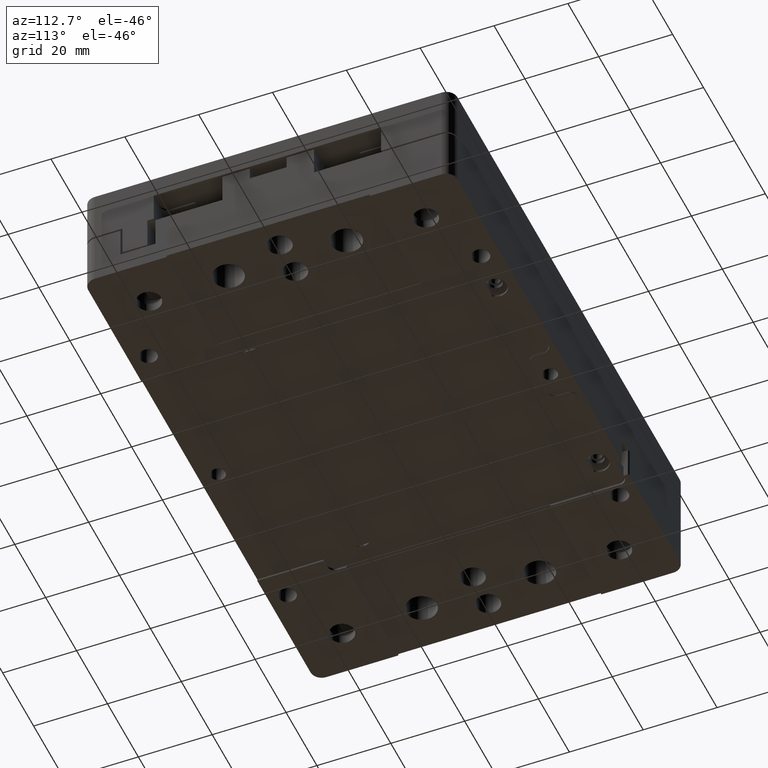
[diagram: clean part render]
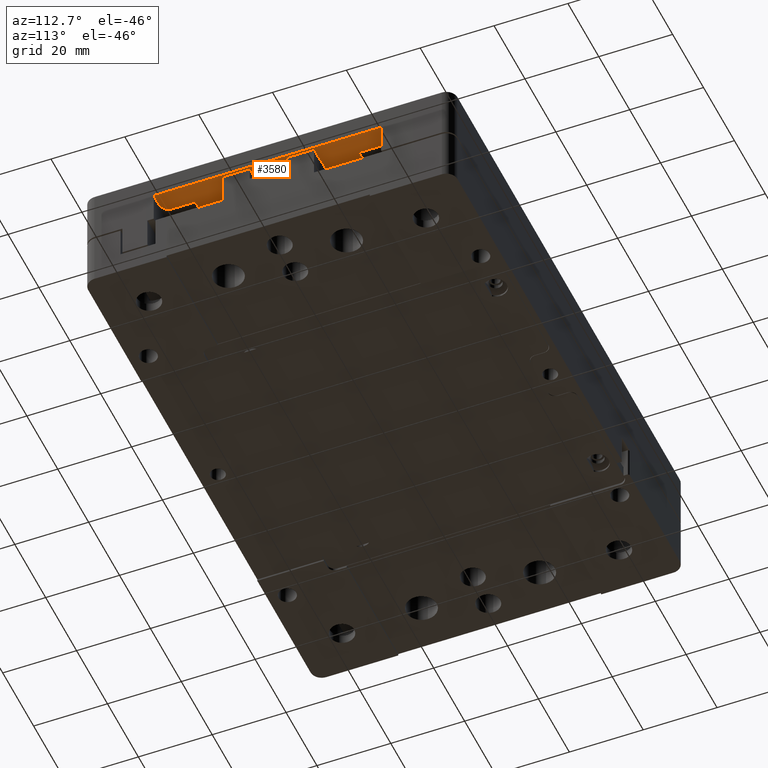
[diagram: same view with one face highlighted and labeled with its STEP entity id]
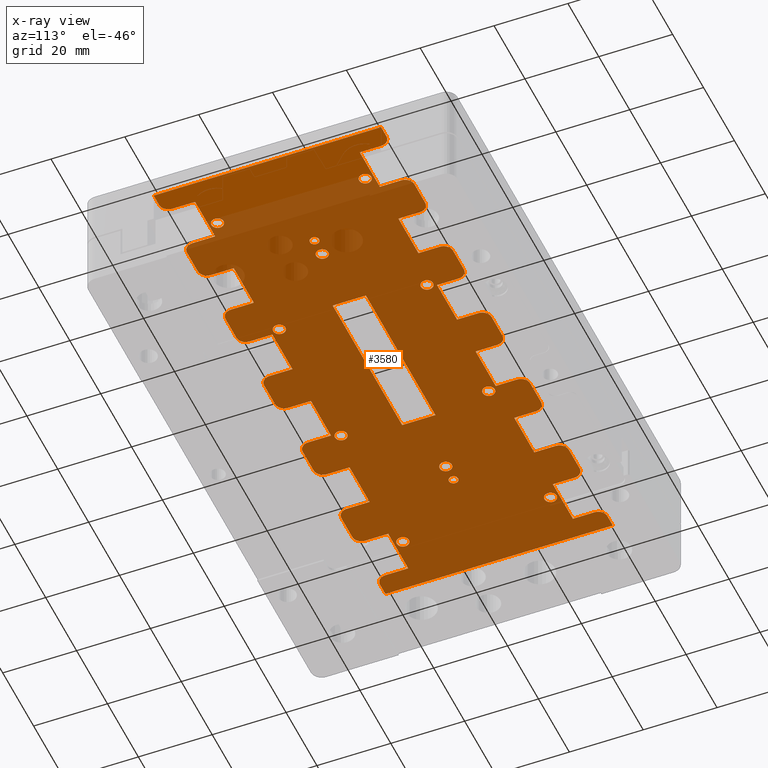
[diagram: x-ray of the same camera — body ghosted, the highlighted face saturated]
A machine part, auxiliary view. The second image highlights one B-rep face of the part: STEP entity #3580.
The next image is the same camera in x-ray: the body ghosted, the highlighted face saturated — about 90% of this face is hidden behind the body in this view.
In plain terms, the highlighted planar face has unit normal (0, 0, -1).
Its self-contained STEP definition (entity closure, byte-faithful):
#4 = CIRCLE ( 'NONE', #1800, 1.649999999999998579 ) ;
#36 = CARTESIAN_POINT ( 'NONE',  ( 19.00000000000000355, 28.10000000000000142, 9.000000000000001776 ) ) ;
#37 = CIRCLE ( 'NONE', #13809, 1.649999999999998579 ) ;
#64 = LINE ( 'NONE', #10393, #14369 ) ;
#77 = FACE_BOUND ( 'NONE', #7817, .T. ) ;
#112 = CARTESIAN_POINT ( 'NONE',  ( 56.00000000000000711, -50.00000000000000000, 9.000000000000001776 ) ) ;
#127 = ORIENTED_EDGE ( 'NONE', *, *, #6658, .T. ) ;
#143 = EDGE_LOOP ( 'NONE', ( #22128, #4400, #8133, #21600, #10445, #17548, #20938, #15487, #11674, #712, #16192, #13249, #10587, #2646, #16829, #1915, #896, #9781, #11763, #7789, #22479, #14325, #14165, #15863, #12252, #19091, #18935, #13603, #2059, #14999, #12551, #6706, #20848, #16492, #20326, #5723, #12242, #7753, #651, #13477, #17263, #2465, #7569, #2318, #5659, #16771, #6168, #4728, #14783, #7647, #16253, #11437, #6880, #11816, #13108, #15649, #3093, #5140, #18699, #18561, #5877, #6044, #16347, #12527, #3430, #1233, #18250, #18360, #11641, #16794, #18788, #20906, #127, #12077, #12814, #8712 ) ) ;
#173 = LINE ( 'NONE', #16068, #4595 ) ;
#182 = FACE_BOUND ( 'NONE', #21823, .T. ) ;
#184 = DIRECTION ( 'NONE',  ( -1.000000000000000000, 0.000000000000000000, 0.000000000000000000 ) ) ;
#188 = DIRECTION ( 'NONE',  ( -1.000000000000000000, 0.000000000000000000, -0.000000000000000000 ) ) ;
#189 = EDGE_LOOP ( 'NONE', ( #14485 ) ) ;
#246 = AXIS2_PLACEMENT_3D ( 'NONE', #19100, #22263, #8420 ) ;
#286 = LINE ( 'NONE', #21075, #3727 ) ;
#298 = CARTESIAN_POINT ( 'NONE',  ( -75.00000000000000000, -31.00000000000000000, 9.000000000000001776 ) ) ;
#329 = CARTESIAN_POINT ( 'NONE',  ( 69.00000000000000000, 28.10000000000000142, 9.000000000000001776 ) ) ;
#340 = CARTESIAN_POINT ( 'NONE',  ( -75.00000000000000000, 30.60000000000000142, 9.000000000000001776 ) ) ;
#359 = AXIS2_PLACEMENT_3D ( 'NONE', #17793, #10535, #19064 ) ;
#393 = VECTOR ( 'NONE', #4474, 1000.000000000000000 ) ;
#402 = DIRECTION ( 'NONE',  ( -1.000000000000000000, 0.000000000000000000, 0.000000000000000000 ) ) ;
#501 = LINE ( 'NONE', #12630, #1437 ) ;
#508 = DIRECTION ( 'NONE',  ( 0.000000000000000000, 1.000000000000000000, 0.000000000000000000 ) ) ;
#574 = CARTESIAN_POINT ( 'NONE',  ( -75.00000000000000000, 30.60000000000000142, 9.000000000000001776 ) ) ;
#651 = ORIENTED_EDGE ( 'NONE', *, *, #15262, .T. ) ;
#659 = CARTESIAN_POINT ( 'NONE',  ( -19.00000000000000355, -50.00000000000000000, 9.000000000000001776 ) ) ;
#712 = ORIENTED_EDGE ( 'NONE', *, *, #8408, .T. ) ;
#724 = VECTOR ( 'NONE', #6086, 1000.000000000000000 ) ;
#764 = VERTEX_POINT ( 'NONE', #14500 ) ;
#805 = LINE ( 'NONE', #2274, #21006 ) ;
#835 = VERTEX_POINT ( 'NONE', #3231 ) ;
#864 = ORIENTED_EDGE ( 'NONE', *, *, #2176, .T. ) ;
#896 = ORIENTED_EDGE ( 'NONE', *, *, #15430, .T. ) ;
#913 = VECTOR ( 'NONE', #5270, 1000.000000000000000 ) ;
#1016 = VECTOR ( 'NONE', #13476, 1000.000000000000000 ) ;
#1051 = CARTESIAN_POINT ( 'NONE',  ( -69.00000000000000000, 28.10000000000000142, 9.000000000000001776 ) ) ;
#1052 = VERTEX_POINT ( 'NONE', #15938 ) ;
#1071 = AXIS2_PLACEMENT_3D ( 'NONE', #13617, #1593, #1482 ) ;
#1080 = CARTESIAN_POINT ( 'NONE',  ( 56.00000000000000711, -22.30000000000000071, 9.000000000000001776 ) ) ;
#1114 = CARTESIAN_POINT ( 'NONE',  ( -6.000000000000002665, -28.50000000000000000, 9.000000000000001776 ) ) ;
#1146 = DIRECTION ( 'NONE',  ( -1.000000000000000000, 0.000000000000000000, -0.000000000000000000 ) ) ;
#1171 = CARTESIAN_POINT ( 'NONE',  ( 20.00000000000000000, 20.00000000000000000, 9.000000000000001776 ) ) ;
#1178 = DIRECTION ( 'NONE',  ( 1.000000000000000000, -0.000000000000000000, 0.000000000000000000 ) ) ;
#1233 = ORIENTED_EDGE ( 'NONE', *, *, #9702, .T. ) ;
#1257 = LINE ( 'NONE', #15218, #2968 ) ;
#1276 = DIRECTION ( 'NONE',  ( 0.000000000000000000, 1.000000000000000000, 0.000000000000000000 ) ) ;
#1281 = DIRECTION ( 'NONE',  ( 0.000000000000000000, 0.000000000000000000, 1.000000000000000000 ) ) ;
#1305 = CARTESIAN_POINT ( 'NONE',  ( 46.50000000000000000, 28.10000000000000497, 9.000000000000001776 ) ) ;
#1325 = CARTESIAN_POINT ( 'NONE',  ( -3.500000000000000444, 30.60000000000000142, 9.000000000000001776 ) ) ;
#1378 = DIRECTION ( 'NONE',  ( -1.000000000000000000, 0.000000000000000000, 0.000000000000000000 ) ) ;
#1388 = DIRECTION ( 'NONE',  ( 0.000000000000000000, 0.000000000000000000, -1.000000000000000000 ) ) ;
#1392 = DIRECTION ( 'NONE',  ( -1.000000000000000000, 0.000000000000000000, 0.000000000000000000 ) ) ;
#1437 = VECTOR ( 'NONE', #9131, 1000.000000000000000 ) ;
#1438 = CARTESIAN_POINT ( 'NONE',  ( -71.50000000000001421, -31.00000000000000000, 9.000000000000001776 ) ) ;
#1481 = VERTEX_POINT ( 'NONE', #14083 ) ;
#1482 = DIRECTION ( 'NONE',  ( -1.000000000000000000, 0.000000000000000000, 0.000000000000000000 ) ) ;
#1509 = CARTESIAN_POINT ( 'NONE',  ( 53.50000000000000000, 28.10000000000000497, 9.000000000000001776 ) ) ;
#1511 = CARTESIAN_POINT ( 'NONE',  ( 75.00000000000000000, -31.00000000000000000, 9.000000000000001776 ) ) ;
#1536 = AXIS2_PLACEMENT_3D ( 'NONE', #13804, #17773, #402 ) ;
#1546 = LINE ( 'NONE', #11762, #16047 ) ;
#1548 = LINE ( 'NONE', #20408, #15700 ) ;
#1593 = DIRECTION ( 'NONE',  ( 0.000000000000000000, 0.000000000000000000, -1.000000000000000000 ) ) ;
#1614 = EDGE_CURVE ( 'NONE', #7810, #13673, #805, .T. ) ;
#1620 = VERTEX_POINT ( 'NONE', #21579 ) ;
#1664 = FACE_BOUND ( 'NONE', #18363, .T. ) ;
#1693 = LINE ( 'NONE', #10438, #13734 ) ;
#1743 = EDGE_CURVE ( 'NONE', #14679, #17187, #15193, .T. ) ;
#1777 = FACE_BOUND ( 'NONE', #189, .T. ) ;
#1800 = AXIS2_PLACEMENT_3D ( 'NONE', #20300, #8256, #8371 ) ;
#1850 = CIRCLE ( 'NONE', #15266, 1.250000000000001110 ) ;
#1900 = VERTEX_POINT ( 'NONE', #17590 ) ;
#1915 = ORIENTED_EDGE ( 'NONE', *, *, #5746, .T. ) ;
#1993 = VERTEX_POINT ( 'NONE', #17664 ) ;
#2005 = VERTEX_POINT ( 'NONE', #17696 ) ;
#2026 = CIRCLE ( 'NONE', #14696, 2.500000000000000000 ) ;
#2048 = EDGE_CURVE ( 'NONE', #13673, #10899, #9286, .T. ) ;
#2059 = ORIENTED_EDGE ( 'NONE', *, *, #21694, .T. ) ;
#2068 = VERTEX_POINT ( 'NONE', #21892 ) ;
#2076 = VERTEX_POINT ( 'NONE', #1325 ) ;
#2096 = VECTOR ( 'NONE', #10597, 1000.000000000000000 ) ;
#2127 = AXIS2_PLACEMENT_3D ( 'NONE', #19334, #21138, #14308 ) ;
#2176 = EDGE_CURVE ( 'NONE', #7690, #7690, #4, .T. ) ;
#2196 = VECTOR ( 'NONE', #19530, 1000.000000000000000 ) ;
#2244 = CARTESIAN_POINT ( 'NONE',  ( -6.000000000000005329, -50.00000000000000000, 9.000000000000001776 ) ) ;
#2264 = DIRECTION ( 'NONE',  ( 0.000000000000000000, 0.000000000000000000, -1.000000000000000000 ) ) ;
#2274 = CARTESIAN_POINT ( 'NONE',  ( -75.00000000000000000, -22.30000000000000071, 9.000000000000001776 ) ) ;
#2286 = CARTESIAN_POINT ( 'NONE',  ( 31.00000000000000000, -28.50000000000000000, 9.000000000000001776 ) ) ;
#2318 = ORIENTED_EDGE ( 'NONE', *, *, #12676, .T. ) ;
#2433 = CARTESIAN_POINT ( 'NONE',  ( 41.64999999999999858, 0.000000000000000000, 9.000000000000001776 ) ) ;
#2442 = LINE ( 'NONE', #19724, #10822 ) ;
#2450 = EDGE_CURVE ( 'NONE', #13860, #15240, #16182, .T. ) ;
#2465 = ORIENTED_EDGE ( 'NONE', *, *, #14890, .T. ) ;
#2507 = CARTESIAN_POINT ( 'NONE',  ( -75.00000000000000000, -31.00000000000000000, 9.000000000000001776 ) ) ;
#2526 = CIRCLE ( 'NONE', #359, 2.500000000000002220 ) ;
#2540 = CARTESIAN_POINT ( 'NONE',  ( -75.00000000000000000, 30.60000000000000142, 9.000000000000001776 ) ) ;
#2557 = VERTEX_POINT ( 'NONE', #1080 ) ;
#2576 = VERTEX_POINT ( 'NONE', #20386 ) ;
#2646 = ORIENTED_EDGE ( 'NONE', *, *, #6338, .T. ) ;
#2654 = CARTESIAN_POINT ( 'NONE',  ( 6.000000000000002665, 28.10000000000000497, 9.000000000000001776 ) ) ;
#2656 = EDGE_CURVE ( 'NONE', #14274, #14274, #19238, .T. ) ;
#2736 = EDGE_LOOP ( 'NONE', ( #864 ) ) ;
#2771 = CARTESIAN_POINT ( 'NONE',  ( 46.50000000000000000, 30.60000000000000142, 9.000000000000001776 ) ) ;
#2859 = AXIS2_PLACEMENT_3D ( 'NONE', #7364, #15999, #3414 ) ;
#2960 = DIRECTION ( 'NONE',  ( 1.000000000000000000, 0.000000000000000000, 0.000000000000000000 ) ) ;
#2963 = EDGE_CURVE ( 'NONE', #3403, #12156, #13388, .T. ) ;
#2968 = VECTOR ( 'NONE', #12043, 1000.000000000000000 ) ;
#2980 = VERTEX_POINT ( 'NONE', #5005 ) ;
#2999 = LINE ( 'NONE', #4585, #4100 ) ;
#3004 = EDGE_CURVE ( 'NONE', #15338, #7125, #3071, .T. ) ;
#3007 = EDGE_CURVE ( 'NONE', #4087, #2076, #5061, .T. ) ;
#3071 = LINE ( 'NONE', #9996, #21004 ) ;
#3093 = ORIENTED_EDGE ( 'NONE', *, *, #21265, .T. ) ;
#3095 = EDGE_CURVE ( 'NONE', #5001, #17798, #1693, .T. ) ;
#3105 = CARTESIAN_POINT ( 'NONE',  ( 19.00000000000000355, 22.30000000000000071, 9.000000000000001776 ) ) ;
#3122 = DIRECTION ( 'NONE',  ( 0.000000000000000000, 1.000000000000000000, 0.000000000000000000 ) ) ;
#3163 = CIRCLE ( 'NONE', #9670, 2.500000000000002220 ) ;
#3231 = CARTESIAN_POINT ( 'NONE',  ( 53.50000000000000711, -31.00000000000000000, 9.000000000000001776 ) ) ;
#3257 = CARTESIAN_POINT ( 'NONE',  ( 21.64999999999999858, -20.00000000000000000, 9.000000000000001776 ) ) ;
#3364 = CARTESIAN_POINT ( 'NONE',  ( -28.49999999999999645, -31.00000000000000000, 9.000000000000001776 ) ) ;
#3383 = FACE_BOUND ( 'NONE', #21667, .T. ) ;
#3401 = CARTESIAN_POINT ( 'NONE',  ( 6.000000000000005329, -50.00000000000000000, 9.000000000000001776 ) ) ;
#3403 = VERTEX_POINT ( 'NONE', #22113 ) ;
#3414 = DIRECTION ( 'NONE',  ( -1.000000000000000000, 0.000000000000000000, 0.000000000000000000 ) ) ;
#3430 = ORIENTED_EDGE ( 'NONE', *, *, #2450, .T. ) ;
#3449 = DIRECTION ( 'NONE',  ( -1.000000000000000000, 0.000000000000000000, 0.000000000000000000 ) ) ;
#3554 = CARTESIAN_POINT ( 'NONE',  ( -28.50000000000000000, -28.50000000000000000, 9.000000000000001776 ) ) ;
#3559 = DIRECTION ( 'NONE',  ( -1.000000000000000000, 0.000000000000000000, -0.000000000000000000 ) ) ;
#3580 = ADVANCED_FACE ( 'NONE', ( #3383, #1664, #15517, #1777, #77, #7005, #20859, #8815, #15742, #182, #5425, #9036, #16414, #4041 ), #6087, .T. ) ;
#3654 = VERTEX_POINT ( 'NONE', #14692 ) ;
#3674 = CIRCLE ( 'NONE', #11635, 1.649999999999998579 ) ;
#3727 = VECTOR ( 'NONE', #5527, 1000.000000000000000 ) ;
#3762 = DIRECTION ( 'NONE',  ( 0.000000000000000000, 0.000000000000000000, 1.000000000000000000 ) ) ;
#3766 = CIRCLE ( 'NONE', #13899, 2.499999999999998668 ) ;
#3771 = EDGE_CURVE ( 'NONE', #15516, #13844, #6315, .T. ) ;
#3775 = CARTESIAN_POINT ( 'NONE',  ( -19.00000000000000355, -22.30000000000000071, 9.000000000000001776 ) ) ;
#3831 = CARTESIAN_POINT ( 'NONE',  ( -44.00000000000000000, -50.00000000000000000, 9.000000000000001776 ) ) ;
#3867 = CARTESIAN_POINT ( 'NONE',  ( 28.50000000000000000, 28.10000000000000497, 9.000000000000001776 ) ) ;
#3873 = LINE ( 'NONE', #574, #11035 ) ;
#3944 = CARTESIAN_POINT ( 'NONE',  ( 21.50000000000000000, 28.10000000000000497, 9.000000000000001776 ) ) ;
#4041 = FACE_OUTER_BOUND ( 'NONE', #143, .T. ) ;
#4087 = VERTEX_POINT ( 'NONE', #15101 ) ;
#4100 = VECTOR ( 'NONE', #1178, 1000.000000000000000 ) ;
#4105 = CARTESIAN_POINT ( 'NONE',  ( -19.00000000000000355, -50.00000000000000000, 9.000000000000001776 ) ) ;
#4139 = LINE ( 'NONE', #2540, #5572 ) ;
#4158 = VECTOR ( 'NONE', #16368, 1000.000000000000000 ) ;
#4252 = EDGE_CURVE ( 'NONE', #10185, #18598, #12586, .T. ) ;
#4267 = CARTESIAN_POINT ( 'NONE',  ( 60.00000000000000000, 20.00000000000000000, 9.000000000000001776 ) ) ;
#4293 = DIRECTION ( 'NONE',  ( -1.000000000000000000, 0.000000000000000000, 0.000000000000000000 ) ) ;
#4307 = CIRCLE ( 'NONE', #14811, 1.649999999999998579 ) ;
#4339 = ORIENTED_EDGE ( 'NONE', *, *, #13459, .F. ) ;
#4383 = CARTESIAN_POINT ( 'NONE',  ( 6.000000000000005329, 22.30000000000000071, 9.000000000000001776 ) ) ;
#4400 = ORIENTED_EDGE ( 'NONE', *, *, #18126, .T. ) ;
#4417 = VERTEX_POINT ( 'NONE', #19653 ) ;
#4474 = DIRECTION ( 'NONE',  ( -0.000000000000000000, -1.000000000000000000, -0.000000000000000000 ) ) ;
#4585 = CARTESIAN_POINT ( 'NONE',  ( -75.00000000000000000, 22.30000000000000071, 9.000000000000001776 ) ) ;
#4595 = VECTOR ( 'NONE', #508, 1000.000000000000000 ) ;
#4600 = CARTESIAN_POINT ( 'NONE',  ( -75.00000000000000000, 22.30000000000000071, 9.000000000000001776 ) ) ;
#4601 = VECTOR ( 'NONE', #1146, 1000.000000000000000 ) ;
#4667 = CIRCLE ( 'NONE', #9732, 1.649999999999998579 ) ;
#4668 = LINE ( 'NONE', #2507, #4158 ) ;
#4728 = ORIENTED_EDGE ( 'NONE', *, *, #13655, .T. ) ;
#4876 = DIRECTION ( 'NONE',  ( 0.000000000000000000, 1.000000000000000000, 0.000000000000000000 ) ) ;
#4886 = CARTESIAN_POINT ( 'NONE',  ( 69.00000000000000000, 22.30000000000000071, 9.000000000000001776 ) ) ;
#4970 = CIRCLE ( 'NONE', #246, 1.649999999999998579 ) ;
#5001 = VERTEX_POINT ( 'NONE', #6639 ) ;
#5005 = CARTESIAN_POINT ( 'NONE',  ( 22.50000000000000711, -4.500000000000001776, 9.000000000000001776 ) ) ;
#5061 = CIRCLE ( 'NONE', #2859, 2.500000000000000000 ) ;
#5067 = DIRECTION ( 'NONE',  ( 0.000000000000000000, 0.000000000000000000, -1.000000000000000000 ) ) ;
#5140 = ORIENTED_EDGE ( 'NONE', *, *, #10043, .T. ) ;
#5159 = LINE ( 'NONE', #11001, #9825 ) ;
#5160 = LINE ( 'NONE', #5495, #913 ) ;
#5190 = VERTEX_POINT ( 'NONE', #3257 ) ;
#5227 = LINE ( 'NONE', #10326, #22303 ) ;
#5233 = LINE ( 'NONE', #112, #17063 ) ;
#5245 = VERTEX_POINT ( 'NONE', #19900 ) ;
#5270 = DIRECTION ( 'NONE',  ( -0.000000000000000000, -1.000000000000000000, -0.000000000000000000 ) ) ;
#5287 = CARTESIAN_POINT ( 'NONE',  ( -75.00000000000000000, 30.60000000000000142, 9.000000000000001776 ) ) ;
#5290 = CIRCLE ( 'NONE', #22327, 2.499999999999998668 ) ;
#5425 = FACE_BOUND ( 'NONE', #13926, .T. ) ;
#5484 = AXIS2_PLACEMENT_3D ( 'NONE', #9940, #5067, #18931 ) ;
#5495 = CARTESIAN_POINT ( 'NONE',  ( -44.00000000000000000, -50.00000000000000000, 9.000000000000001776 ) ) ;
#5515 = AXIS2_PLACEMENT_3D ( 'NONE', #3867, #19214, #5688 ) ;
#5527 = DIRECTION ( 'NONE',  ( -1.000000000000000000, 0.000000000000000000, -0.000000000000000000 ) ) ;
#5551 = EDGE_CURVE ( 'NONE', #20237, #20951, #8765, .T. ) ;
#5572 = VECTOR ( 'NONE', #11060, 1000.000000000000000 ) ;
#5576 = CARTESIAN_POINT ( 'NONE',  ( -19.00000000000000355, -28.50000000000000000, 9.000000000000001776 ) ) ;
#5581 = VERTEX_POINT ( 'NONE', #11344 ) ;
#5642 = CIRCLE ( 'NONE', #9984, 2.500000000000002220 ) ;
#5643 = DIRECTION ( 'NONE',  ( 0.000000000000000000, 0.000000000000000000, -1.000000000000000000 ) ) ;
#5648 = CARTESIAN_POINT ( 'NONE',  ( -60.00000000000000000, -20.00000000000000000, 9.000000000000001776 ) ) ;
#5657 = LINE ( 'NONE', #5886, #14711 ) ;
#5659 = ORIENTED_EDGE ( 'NONE', *, *, #15824, .T. ) ;
#5683 = CARTESIAN_POINT ( 'NONE',  ( 75.00000000000000000, 0.000000000000000000, 9.000000000000001776 ) ) ;
#5684 = DIRECTION ( 'NONE',  ( 0.000000000000000000, 1.000000000000000000, 0.000000000000000000 ) ) ;
#5688 = DIRECTION ( 'NONE',  ( -1.000000000000000000, 0.000000000000000000, 0.000000000000000000 ) ) ;
#5697 = DIRECTION ( 'NONE',  ( -1.000000000000000000, 0.000000000000000000, -0.000000000000000000 ) ) ;
#5723 = ORIENTED_EDGE ( 'NONE', *, *, #15749, .T. ) ;
#5746 = EDGE_CURVE ( 'NONE', #10744, #18930, #8432, .T. ) ;
#5808 = EDGE_CURVE ( 'NONE', #6660, #13848, #15692, .T. ) ;
#5807 = EDGE_LOOP ( 'NONE', ( #7432 ) ) ;
#5877 = ORIENTED_EDGE ( 'NONE', *, *, #21358, .T. ) ;
#5886 = CARTESIAN_POINT ( 'NONE',  ( -75.00000000000000000, 30.60000000000000142, 9.000000000000001776 ) ) ;
#5985 = CARTESIAN_POINT ( 'NONE',  ( 28.50000000000000000, -28.50000000000000000, 9.000000000000001776 ) ) ;
#5990 = CARTESIAN_POINT ( 'NONE',  ( 3.500000000000000444, 30.60000000000000142, 9.000000000000001776 ) ) ;
#6044 = ORIENTED_EDGE ( 'NONE', *, *, #5551, .T. ) ;
#6084 = EDGE_CURVE ( 'NONE', #9719, #10744, #1548, .T. ) ;
#6086 = DIRECTION ( 'NONE',  ( 0.000000000000000000, 1.000000000000000000, 0.000000000000000000 ) ) ;
#6087 = PLANE ( 'NONE',  #11217 ) ;
#6168 = ORIENTED_EDGE ( 'NONE', *, *, #3095, .T. ) ;
#6230 = VECTOR ( 'NONE', #8792, 1000.000000000000000 ) ;
#6315 = LINE ( 'NONE', #4600, #13050 ) ;
#6338 = EDGE_CURVE ( 'NONE', #10003, #9719, #286, .T. ) ;
#6345 = CARTESIAN_POINT ( 'NONE',  ( -75.00000000000000000, -22.30000000000000071, 9.000000000000001776 ) ) ;
#6366 = DIRECTION ( 'NONE',  ( -1.000000000000000000, 0.000000000000000000, 0.000000000000000000 ) ) ;
#6378 = DIRECTION ( 'NONE',  ( 0.000000000000000000, 1.000000000000000000, 0.000000000000000000 ) ) ;
#6474 = CARTESIAN_POINT ( 'NONE',  ( 3.500000000000000000, 28.10000000000000497, 9.000000000000001776 ) ) ;
#6486 = CARTESIAN_POINT ( 'NONE',  ( -75.00000000000000000, -31.00000000000000000, 9.000000000000001776 ) ) ;
#6583 = DIRECTION ( 'NONE',  ( -1.000000000000000000, 0.000000000000000000, 0.000000000000000000 ) ) ;
#6631 = DIRECTION ( 'NONE',  ( 0.000000000000000000, 0.000000000000000000, -1.000000000000000000 ) ) ;
#6637 = CIRCLE ( 'NONE', #1536, 2.500000000000002220 ) ;
#6639 = CARTESIAN_POINT ( 'NONE',  ( -31.00000000000000000, 22.30000000000000071, 9.000000000000001776 ) ) ;
#6658 = EDGE_CURVE ( 'NONE', #11181, #18598, #3873, .T. ) ;
#6660 = VERTEX_POINT ( 'NONE', #7495 ) ;
#6669 = CIRCLE ( 'NONE', #9554, 1.649999999999998579 ) ;
#6700 = LINE ( 'NONE', #22478, #8883 ) ;
#6706 = ORIENTED_EDGE ( 'NONE', *, *, #13528, .T. ) ;
#6774 = DIRECTION ( 'NONE',  ( -0.000000000000000000, -1.000000000000000000, -0.000000000000000000 ) ) ;
#6792 = CARTESIAN_POINT ( 'NONE',  ( -20.00000000000000000, -20.00000000000000000, 9.000000000000001776 ) ) ;
#6797 = LINE ( 'NONE', #3401, #7833 ) ;
#6849 = CARTESIAN_POINT ( 'NONE',  ( -75.00000000000000000, 22.30000000000000071, 9.000000000000001776 ) ) ;
#6875 = AXIS2_PLACEMENT_3D ( 'NONE', #1305, #10166, #8236 ) ;
#6880 = ORIENTED_EDGE ( 'NONE', *, *, #16012, .T. ) ;
#6923 = DIRECTION ( 'NONE',  ( 0.000000000000000000, 1.000000000000000000, 0.000000000000000000 ) ) ;
#6979 = EDGE_CURVE ( 'NONE', #7461, #4417, #5227, .T. ) ;
#7005 = FACE_BOUND ( 'NONE', #20443, .T. ) ;
#7017 = LINE ( 'NONE', #3831, #17094 ) ;
#7066 = EDGE_CURVE ( 'NONE', #7764, #3654, #6700, .T. ) ;
#7085 = VERTEX_POINT ( 'NONE', #12297 ) ;
#7116 = EDGE_CURVE ( 'NONE', #13118, #7810, #9066, .T. ) ;
#7125 = VERTEX_POINT ( 'NONE', #19303 ) ;
#7154 = ORIENTED_EDGE ( 'NONE', *, *, #10732, .T. ) ;
#7206 = VECTOR ( 'NONE', #19945, 1000.000000000000000 ) ;
#7210 = CIRCLE ( 'NONE', #19908, 2.499999999999998668 ) ;
#7313 = CARTESIAN_POINT ( 'NONE',  ( -31.00000000000000000, -28.50000000000000000, 9.000000000000001776 ) ) ;
#7338 = CARTESIAN_POINT ( 'NONE',  ( -71.50000000000001421, 28.10000000000000497, 9.000000000000001776 ) ) ;
#7364 = CARTESIAN_POINT ( 'NONE',  ( -3.500000000000000000, 28.10000000000000497, 9.000000000000001776 ) ) ;
#7378 = CARTESIAN_POINT ( 'NONE',  ( 31.00000000000000000, -50.00000000000000000, 9.000000000000001776 ) ) ;
#7422 = CARTESIAN_POINT ( 'NONE',  ( 19.00000000000000355, -22.30000000000000071, 9.000000000000001776 ) ) ;
#7432 = ORIENTED_EDGE ( 'NONE', *, *, #19114, .T. ) ;
#7438 = CARTESIAN_POINT ( 'NONE',  ( -3.500000000000000000, -28.50000000000000000, 9.000000000000001776 ) ) ;
#7461 = VERTEX_POINT ( 'NONE', #1438 ) ;
#7486 = CARTESIAN_POINT ( 'NONE',  ( 21.50000000000000000, -28.50000000000000000, 9.000000000000001776 ) ) ;
#7495 = CARTESIAN_POINT ( 'NONE',  ( 46.50000000000000000, -31.00000000000000000, 9.000000000000001776 ) ) ;
#7509 = DIRECTION ( 'NONE',  ( -1.000000000000000000, 0.000000000000000000, 0.000000000000000000 ) ) ;
#7535 = CARTESIAN_POINT ( 'NONE',  ( 69.00000000000001421, -22.30000000000000071, 9.000000000000001776 ) ) ;
#7569 = ORIENTED_EDGE ( 'NONE', *, *, #3004, .T. ) ;
#7647 = ORIENTED_EDGE ( 'NONE', *, *, #19082, .T. ) ;
#7656 = EDGE_CURVE ( 'NONE', #17673, #13118, #2026, .T. ) ;
#7672 = DIRECTION ( 'NONE',  ( 0.000000000000000000, 0.000000000000000000, -1.000000000000000000 ) ) ;
#7690 = VERTEX_POINT ( 'NONE', #19849 ) ;
#7691 = AXIS2_PLACEMENT_3D ( 'NONE', #8276, #22137, #6583 ) ;
#7753 = ORIENTED_EDGE ( 'NONE', *, *, #8190, .T. ) ;
#7754 = CARTESIAN_POINT ( 'NONE',  ( 22.50000000000000711, 4.500000000000002665, 9.000000000000001776 ) ) ;
#7761 = CARTESIAN_POINT ( 'NONE',  ( -45.00000000000000000, 0.000000000000000000, 9.000000000000001776 ) ) ;
#7764 = VERTEX_POINT ( 'NONE', #17699 ) ;
#7768 = LINE ( 'NONE', #18112, #12076 ) ;
#7789 = ORIENTED_EDGE ( 'NONE', *, *, #1614, .T. ) ;
#7810 = VERTEX_POINT ( 'NONE', #19197 ) ;
#7817 = EDGE_LOOP ( 'NONE', ( #14443 ) ) ;
#7833 = VECTOR ( 'NONE', #22464, 1000.000000000000000 ) ;
#7836 = EDGE_CURVE ( 'NONE', #9675, #2005, #5233, .T. ) ;
#8001 = CARTESIAN_POINT ( 'NONE',  ( -69.00000000000000000, -50.00000000000000000, 9.000000000000001776 ) ) ;
#8039 = EDGE_CURVE ( 'NONE', #15401, #15401, #17424, .T. ) ;
#8042 = VECTOR ( 'NONE', #3122, 1000.000000000000000 ) ;
#8133 = ORIENTED_EDGE ( 'NONE', *, *, #18129, .T. ) ;
#8181 = LINE ( 'NONE', #11806, #8643 ) ;
#8189 = LINE ( 'NONE', #11470, #13660 ) ;
#8190 = EDGE_CURVE ( 'NONE', #8566, #12081, #3163, .T. ) ;
#8209 = DIRECTION ( 'NONE',  ( 0.000000000000000000, 1.000000000000000000, 0.000000000000000000 ) ) ;
#8236 = DIRECTION ( 'NONE',  ( -1.000000000000000000, 0.000000000000000000, 0.000000000000000000 ) ) ;
#8256 = DIRECTION ( 'NONE',  ( 0.000000000000000000, 0.000000000000000000, 1.000000000000000000 ) ) ;
#8276 = CARTESIAN_POINT ( 'NONE',  ( 46.50000000000000000, -28.50000000000000000, 9.000000000000001776 ) ) ;
#8371 = DIRECTION ( 'NONE',  ( 1.000000000000000000, 0.000000000000000000, 0.000000000000000000 ) ) ;
#8379 = VERTEX_POINT ( 'NONE', #4383 ) ;
#8382 = AXIS2_PLACEMENT_3D ( 'NONE', #11728, #6631, #1392 ) ;
#8408 = EDGE_CURVE ( 'NONE', #10509, #2576, #11870, .T. ) ;
#8420 = DIRECTION ( 'NONE',  ( 1.000000000000000000, 0.000000000000000000, 0.000000000000000000 ) ) ;
#8432 = CIRCLE ( 'NONE', #16043, 2.500000000000000000 ) ;
#8443 = CARTESIAN_POINT ( 'NONE',  ( 60.00000000000000000, -20.00000000000000000, 9.000000000000001776 ) ) ;
#8475 = DIRECTION ( 'NONE',  ( -1.000000000000000000, 0.000000000000000000, -0.000000000000000000 ) ) ;
#8480 = CARTESIAN_POINT ( 'NONE',  ( 43.75000000000000000, 0.000000000000000000, 9.000000000000001776 ) ) ;
#8533 = DIRECTION ( 'NONE',  ( 1.000000000000000000, 0.000000000000000000, 0.000000000000000000 ) ) ;
#8552 = LINE ( 'NONE', #6849, #2096 ) ;
#8566 = VERTEX_POINT ( 'NONE', #18805 ) ;
#8643 = VECTOR ( 'NONE', #18755, 1000.000000000000000 ) ;
#8712 = ORIENTED_EDGE ( 'NONE', *, *, #20491, .T. ) ;
#8734 = CARTESIAN_POINT ( 'NONE',  ( -21.50000000000000355, -31.00000000000000000, 9.000000000000001776 ) ) ;
#8744 = VERTEX_POINT ( 'NONE', #7313 ) ;
#8765 = CIRCLE ( 'NONE', #5515, 2.499999999999998668 ) ;
#8792 = DIRECTION ( 'NONE',  ( 1.000000000000000000, -0.000000000000000000, 0.000000000000000000 ) ) ;
#8815 = FACE_BOUND ( 'NONE', #15828, .T. ) ;
#8883 = VECTOR ( 'NONE', #6923, 1000.000000000000000 ) ;
#8926 = LINE ( 'NONE', #298, #22430 ) ;
#8968 = EDGE_CURVE ( 'NONE', #2068, #16589, #21948, .T. ) ;
#9030 = DIRECTION ( 'NONE',  ( 0.000000000000000000, 0.000000000000000000, -1.000000000000000000 ) ) ;
#9036 = FACE_BOUND ( 'NONE', #5807, .T. ) ;
#9066 = LINE ( 'NONE', #2244, #10696 ) ;
#9085 = DIRECTION ( 'NONE',  ( 1.000000000000000000, -0.000000000000000000, 0.000000000000000000 ) ) ;
#9131 = DIRECTION ( 'NONE',  ( 1.000000000000000000, -0.000000000000000000, 0.000000000000000000 ) ) ;
#9139 = CARTESIAN_POINT ( 'NONE',  ( -44.00000000000000000, -28.50000000000000000, 9.000000000000001776 ) ) ;
#9150 = EDGE_CURVE ( 'NONE', #19522, #15516, #9318, .T. ) ;
#9167 = DIRECTION ( 'NONE',  ( 0.000000000000000000, 0.000000000000000000, -1.000000000000000000 ) ) ;
#9235 = VERTEX_POINT ( 'NONE', #14311 ) ;
#9279 = CIRCLE ( 'NONE', #15459, 2.499999999999998668 ) ;
#9286 = LINE ( 'NONE', #659, #14118 ) ;
#9297 = LINE ( 'NONE', #14622, #19459 ) ;
#9317 = DIRECTION ( 'NONE',  ( 0.000000000000000000, 1.000000000000000000, 0.000000000000000000 ) ) ;
#9318 = LINE ( 'NONE', #4105, #12260 ) ;
#9371 = EDGE_CURVE ( 'NONE', #5190, #5190, #4667, .T. ) ;
#9375 = AXIS2_PLACEMENT_3D ( 'NONE', #5648, #21195, #12548 ) ;
#9380 = ORIENTED_EDGE ( 'NONE', *, *, #2656, .T. ) ;
#9398 = AXIS2_PLACEMENT_3D ( 'NONE', #3554, #1388, #3449 ) ;
#9404 = EDGE_CURVE ( 'NONE', #835, #6660, #8926, .T. ) ;
#9434 = CARTESIAN_POINT ( 'NONE',  ( -31.00000000000000000, -50.00000000000000000, 9.000000000000001776 ) ) ;
#9533 = EDGE_CURVE ( 'NONE', #15628, #15628, #10466, .T. ) ;
#9554 = AXIS2_PLACEMENT_3D ( 'NONE', #12160, #3762, #8533 ) ;
#9570 = VECTOR ( 'NONE', #21915, 1000.000000000000000 ) ;
#9582 = CARTESIAN_POINT ( 'NONE',  ( 56.00000000000000711, -28.50000000000000000, 9.000000000000001776 ) ) ;
#9596 = CARTESIAN_POINT ( 'NONE',  ( -75.00000000000000000, 22.30000000000000071, 9.000000000000001776 ) ) ;
#9599 = EDGE_CURVE ( 'NONE', #10179, #10179, #4307, .T. ) ;
#9624 = EDGE_CURVE ( 'NONE', #16876, #7764, #16188, .T. ) ;
#9670 = AXIS2_PLACEMENT_3D ( 'NONE', #7338, #5643, #184 ) ;
#9675 = VERTEX_POINT ( 'NONE', #11079 ) ;
#9678 = ORIENTED_EDGE ( 'NONE', *, *, #9599, .T. ) ;
#9686 = CARTESIAN_POINT ( 'NONE',  ( -69.00000000000000000, -50.00000000000000000, 9.000000000000001776 ) ) ;
#9693 = LINE ( 'NONE', #8001, #16181 ) ;
#9702 = EDGE_CURVE ( 'NONE', #15240, #21978, #12637, .T. ) ;
#9710 = ORIENTED_EDGE ( 'NONE', *, *, #9533, .T. ) ;
#9711 = DIRECTION ( 'NONE',  ( 0.000000000000000000, 0.000000000000000000, -1.000000000000000000 ) ) ;
#9719 = VERTEX_POINT ( 'NONE', #21974 ) ;
#9732 = AXIS2_PLACEMENT_3D ( 'NONE', #13276, #22032, #2960 ) ;
#9781 = ORIENTED_EDGE ( 'NONE', *, *, #7656, .T. ) ;
#9787 = AXIS2_PLACEMENT_3D ( 'NONE', #14672, #21396, #11055 ) ;
#9825 = VECTOR ( 'NONE', #3559, 1000.000000000000000 ) ;
#9911 = LINE ( 'NONE', #16844, #19940 ) ;
#9940 = CARTESIAN_POINT ( 'NONE',  ( -53.50000000000000000, 28.10000000000000497, 9.000000000000001776 ) ) ;
#9984 = AXIS2_PLACEMENT_3D ( 'NONE', #12728, #19894, #7509 ) ;
#9996 = CARTESIAN_POINT ( 'NONE',  ( -75.00000000000000000, 30.60000000000000142, 9.000000000000001776 ) ) ;
#10003 = VERTEX_POINT ( 'NONE', #7422 ) ;
#10034 = CARTESIAN_POINT ( 'NONE',  ( 75.00000000000000000, 30.60000000000000142, 9.000000000000001776 ) ) ;
#10043 = EDGE_CURVE ( 'NONE', #8379, #15278, #501, .T. ) ;
#10069 = EDGE_CURVE ( 'NONE', #12807, #11181, #18875, .T. ) ;
#10135 = DIRECTION ( 'NONE',  ( -1.000000000000000000, 0.000000000000000000, 0.000000000000000000 ) ) ;
#10160 = AXIS2_PLACEMENT_3D ( 'NONE', #16548, #19856, #4293 ) ;
#10166 = DIRECTION ( 'NONE',  ( 0.000000000000000000, 0.000000000000000000, -1.000000000000000000 ) ) ;
#10179 = VERTEX_POINT ( 'NONE', #17115 ) ;
#10185 = VERTEX_POINT ( 'NONE', #1511 ) ;
#10244 = VERTEX_POINT ( 'NONE', #17076 ) ;
#10303 = EDGE_CURVE ( 'NONE', #22295, #12807, #9911, .T. ) ;
#10318 = CARTESIAN_POINT ( 'NONE',  ( -31.00000000000000000, 28.10000000000000142, 9.000000000000001776 ) ) ;
#10326 = CARTESIAN_POINT ( 'NONE',  ( -75.00000000000000000, -31.00000000000000000, 9.000000000000001776 ) ) ;
#10363 = LINE ( 'NONE', #13534, #19557 ) ;
#10393 = CARTESIAN_POINT ( 'NONE',  ( -75.00000000000000000, -31.00000000000000000, 9.000000000000001776 ) ) ;
#10438 = CARTESIAN_POINT ( 'NONE',  ( -31.00000000000000000, -50.00000000000000000, 9.000000000000001776 ) ) ;
#10445 = ORIENTED_EDGE ( 'NONE', *, *, #9404, .T. ) ;
#10466 = CIRCLE ( 'NONE', #9375, 1.649999999999998579 ) ;
#10509 = VERTEX_POINT ( 'NONE', #2286 ) ;
#10535 = DIRECTION ( 'NONE',  ( 0.000000000000000000, 0.000000000000000000, -1.000000000000000000 ) ) ;
#10587 = ORIENTED_EDGE ( 'NONE', *, *, #20954, .T. ) ;
#10597 = DIRECTION ( 'NONE',  ( 1.000000000000000000, -0.000000000000000000, 0.000000000000000000 ) ) ;
#10635 = EDGE_CURVE ( 'NONE', #10185, #17258, #14873, .T. ) ;
#10696 = VECTOR ( 'NONE', #17809, 1000.000000000000000 ) ;
#10712 = EDGE_CURVE ( 'NONE', #20529, #18384, #8189, .T. ) ;
#10732 = EDGE_CURVE ( 'NONE', #19482, #19482, #4970, .T. ) ;
#10744 = VERTEX_POINT ( 'NONE', #15445 ) ;
#10808 = CARTESIAN_POINT ( 'NONE',  ( 69.00000000000000000, -28.50000000000000000, 9.000000000000001776 ) ) ;
#10822 = VECTOR ( 'NONE', #11185, 1000.000000000000000 ) ;
#10878 = DIRECTION ( 'NONE',  ( -0.000000000000000000, -1.000000000000000000, -0.000000000000000000 ) ) ;
#10899 = VERTEX_POINT ( 'NONE', #5576 ) ;
#10915 = EDGE_CURVE ( 'NONE', #13383, #8566, #9297, .T. ) ;
#10927 = CARTESIAN_POINT ( 'NONE',  ( 3.500000000000001332, -31.00000000000000000, 9.000000000000001776 ) ) ;
#11001 = CARTESIAN_POINT ( 'NONE',  ( -75.00000000000000000, -31.00000000000000000, 9.000000000000001776 ) ) ;
#11035 = VECTOR ( 'NONE', #20599, 1000.000000000000000 ) ;
#11055 = DIRECTION ( 'NONE',  ( -1.000000000000000000, 0.000000000000000000, 0.000000000000000000 ) ) ;
#11057 = DIRECTION ( 'NONE',  ( -1.000000000000000000, 0.000000000000000000, 0.000000000000000000 ) ) ;
#11060 = DIRECTION ( 'NONE',  ( 1.000000000000000000, -0.000000000000000000, 0.000000000000000000 ) ) ;
#11074 = DIRECTION ( 'NONE',  ( 0.000000000000000000, 0.000000000000000000, -1.000000000000000000 ) ) ;
#11079 = CARTESIAN_POINT ( 'NONE',  ( 56.00000000000000711, 28.10000000000000142, 9.000000000000001776 ) ) ;
#11181 = VERTEX_POINT ( 'NONE', #15069 ) ;
#11185 = DIRECTION ( 'NONE',  ( -1.000000000000000000, -0.000000000000000000, -0.000000000000000000 ) ) ;
#11217 = AXIS2_PLACEMENT_3D ( 'NONE', #12989, #11074, #18008 ) ;
#11320 = EDGE_CURVE ( 'NONE', #1993, #1993, #19966, .T. ) ;
#11344 = CARTESIAN_POINT ( 'NONE',  ( -22.50000000000000000, -4.500000000000001776, 9.000000000000001776 ) ) ;
#11437 = ORIENTED_EDGE ( 'NONE', *, *, #3771, .T. ) ;
#11462 = DIRECTION ( 'NONE',  ( 1.000000000000000000, 0.000000000000000000, -0.000000000000000000 ) ) ;
#11470 = CARTESIAN_POINT ( 'NONE',  ( 69.00000000000001421, -50.00000000000000000, 9.000000000000001776 ) ) ;
#11537 = VERTEX_POINT ( 'NONE', #15366 ) ;
#11543 = CIRCLE ( 'NONE', #9398, 2.499999999999998668 ) ;
#11586 = CARTESIAN_POINT ( 'NONE',  ( -21.50000000000000000, -28.50000000000000000, 9.000000000000001776 ) ) ;
#11612 = CARTESIAN_POINT ( 'NONE',  ( -56.00000000000000000, -50.00000000000000000, 9.000000000000001776 ) ) ;
#11635 = AXIS2_PLACEMENT_3D ( 'NONE', #1171, #1281, #16611 ) ;
#11641 = ORIENTED_EDGE ( 'NONE', *, *, #7836, .T. ) ;
#11674 = ORIENTED_EDGE ( 'NONE', *, *, #19635, .T. ) ;
#11680 = VERTEX_POINT ( 'NONE', #19023 ) ;
#11686 = EDGE_CURVE ( 'NONE', #12804, #5001, #8552, .T. ) ;
#11728 = CARTESIAN_POINT ( 'NONE',  ( 53.50000000000000000, -28.50000000000000000, 9.000000000000001776 ) ) ;
#11763 = ORIENTED_EDGE ( 'NONE', *, *, #7116, .T. ) ;
#11762 = CARTESIAN_POINT ( 'NONE',  ( -75.00000000000000000, -22.30000000000000071, 9.000000000000001776 ) ) ;
#11806 = CARTESIAN_POINT ( 'NONE',  ( -22.50000000000000000, -50.00000000000000000, 9.000000000000001776 ) ) ;
#11816 = ORIENTED_EDGE ( 'NONE', *, *, #3007, .T. ) ;
#11847 = CARTESIAN_POINT ( 'NONE',  ( -69.00000000000000000, -28.50000000000000000, 9.000000000000001776 ) ) ;
#11870 = CIRCLE ( 'NONE', #20219, 2.499999999999998668 ) ;
#12043 = DIRECTION ( 'NONE',  ( 0.000000000000000000, 1.000000000000000000, 0.000000000000000000 ) ) ;
#12076 = VECTOR ( 'NONE', #12976, 1000.000000000000000 ) ;
#12077 = ORIENTED_EDGE ( 'NONE', *, *, #4252, .F. ) ;
#12081 = VERTEX_POINT ( 'NONE', #1051 ) ;
#12097 = LINE ( 'NONE', #12204, #18752 ) ;
#12116 = ORIENTED_EDGE ( 'NONE', *, *, #11320, .T. ) ;
#12119 = DIRECTION ( 'NONE',  ( 1.000000000000000000, 0.000000000000000000, 0.000000000000000000 ) ) ;
#12156 = VERTEX_POINT ( 'NONE', #7754 ) ;
#12160 = CARTESIAN_POINT ( 'NONE',  ( -20.00000000000000000, 20.00000000000000000, 9.000000000000001776 ) ) ;
#12189 = LINE ( 'NONE', #13792, #8042 ) ;
#12204 = CARTESIAN_POINT ( 'NONE',  ( 44.00000000000000000, -50.00000000000000000, 9.000000000000001776 ) ) ;
#12242 = ORIENTED_EDGE ( 'NONE', *, *, #10915, .T. ) ;
#12252 = ORIENTED_EDGE ( 'NONE', *, *, #12541, .T. ) ;
#12260 = VECTOR ( 'NONE', #14416, 1000.000000000000000 ) ;
#12279 = AXIS2_PLACEMENT_3D ( 'NONE', #1509, #15357, #10135 ) ;
#12297 = CARTESIAN_POINT ( 'NONE',  ( -18.35000000000000142, 20.00000000000000000, 9.000000000000001776 ) ) ;
#12391 = DIRECTION ( 'NONE',  ( 0.000000000000000000, 0.000000000000000000, -1.000000000000000000 ) ) ;
#12527 = ORIENTED_EDGE ( 'NONE', *, *, #17279, .T. ) ;
#12541 = EDGE_CURVE ( 'NONE', #8744, #1052, #14867, .T. ) ;
#12548 = DIRECTION ( 'NONE',  ( 1.000000000000000000, 0.000000000000000000, 0.000000000000000000 ) ) ;
#12551 = ORIENTED_EDGE ( 'NONE', *, *, #8968, .T. ) ;
#12575 = DIRECTION ( 'NONE',  ( -0.000000000000000000, -1.000000000000000000, -0.000000000000000000 ) ) ;
#12586 = LINE ( 'NONE', #5683, #2196 ) ;
#12587 = DIRECTION ( 'NONE',  ( -1.000000000000000000, 0.000000000000000000, 0.000000000000000000 ) ) ;
#12630 = CARTESIAN_POINT ( 'NONE',  ( -75.00000000000000000, 22.30000000000000071, 9.000000000000001776 ) ) ;
#12637 = CIRCLE ( 'NONE', #6875, 2.500000000000002220 ) ;
#12676 = EDGE_CURVE ( 'NONE', #7125, #13071, #22093, .T. ) ;
#12728 = CARTESIAN_POINT ( 'NONE',  ( 71.50000000000001421, -28.50000000000000000, 9.000000000000001776 ) ) ;
#12730 = EDGE_CURVE ( 'NONE', #3403, #5581, #8181, .T. ) ;
#12804 = VERTEX_POINT ( 'NONE', #17819 ) ;
#12807 = VERTEX_POINT ( 'NONE', #329 ) ;
#12814 = ORIENTED_EDGE ( 'NONE', *, *, #10635, .T. ) ;
#12909 = CARTESIAN_POINT ( 'NONE',  ( -21.50000000000000355, 30.60000000000000142, 9.000000000000001776 ) ) ;
#12976 = DIRECTION ( 'NONE',  ( 1.000000000000000000, -0.000000000000000000, 0.000000000000000000 ) ) ;
#12989 = CARTESIAN_POINT ( 'NONE',  ( -75.00000000000000000, -50.00000000000000000, 9.000000000000001776 ) ) ;
#13050 = VECTOR ( 'NONE', #20162, 1000.000000000000000 ) ;
#13055 = CIRCLE ( 'NONE', #5484, 2.500000000000002220 ) ;
#13061 = DIRECTION ( 'NONE',  ( 0.000000000000000000, 0.000000000000000000, -1.000000000000000000 ) ) ;
#13071 = VERTEX_POINT ( 'NONE', #18722 ) ;
#13080 = EDGE_CURVE ( 'NONE', #1052, #21060, #13588, .T. ) ;
#13108 = ORIENTED_EDGE ( 'NONE', *, *, #15998, .T. ) ;
#13118 = VERTEX_POINT ( 'NONE', #1114 ) ;
#13157 = CARTESIAN_POINT ( 'NONE',  ( -75.00000000000000000, -22.30000000000000071, 9.000000000000001776 ) ) ;
#13249 = ORIENTED_EDGE ( 'NONE', *, *, #20983, .T. ) ;
#13252 = CARTESIAN_POINT ( 'NONE',  ( -56.00000000000000000, -22.30000000000000071, 9.000000000000001776 ) ) ;
#13276 = CARTESIAN_POINT ( 'NONE',  ( 20.00000000000000000, -20.00000000000000000, 9.000000000000001776 ) ) ;
#13383 = VERTEX_POINT ( 'NONE', #22058 ) ;
#13388 = LINE ( 'NONE', #22029, #21360 ) ;
#13459 = EDGE_CURVE ( 'NONE', #2980, #5581, #2442, .T. ) ;
#13476 = DIRECTION ( 'NONE',  ( -1.000000000000000000, 0.000000000000000000, -0.000000000000000000 ) ) ;
#13477 = ORIENTED_EDGE ( 'NONE', *, *, #9624, .T. ) ;
#13517 = EDGE_CURVE ( 'NONE', #14824, #8744, #11543, .T. ) ;
#13528 = EDGE_CURVE ( 'NONE', #16589, #17746, #10363, .T. ) ;
#13534 = CARTESIAN_POINT ( 'NONE',  ( -75.00000000000000000, -22.30000000000000071, 9.000000000000001776 ) ) ;
#13559 = EDGE_CURVE ( 'NONE', #11680, #9675, #21721, .T. ) ;
#13588 = LINE ( 'NONE', #6345, #1016 ) ;
#13600 = DIRECTION ( 'NONE',  ( -1.000000000000000000, 0.000000000000000000, -0.000000000000000000 ) ) ;
#13603 = ORIENTED_EDGE ( 'NONE', *, *, #14536, .T. ) ;
#13617 = CARTESIAN_POINT ( 'NONE',  ( -46.50000000000000000, 28.10000000000000497, 9.000000000000001776 ) ) ;
#13650 = LINE ( 'NONE', #9686, #393 ) ;
#13655 = EDGE_CURVE ( 'NONE', #17798, #5245, #7210, .T. ) ;
#13660 = VECTOR ( 'NONE', #6378, 1000.000000000000000 ) ;
#13673 = VERTEX_POINT ( 'NONE', #3775 ) ;
#13710 = DIRECTION ( 'NONE',  ( 0.000000000000000000, 0.000000000000000000, 1.000000000000000000 ) ) ;
#13734 = VECTOR ( 'NONE', #15878, 1000.000000000000000 ) ;
#13792 = CARTESIAN_POINT ( 'NONE',  ( -6.000000000000005329, -50.00000000000000000, 9.000000000000001776 ) ) ;
#13803 = DIRECTION ( 'NONE',  ( 0.000000000000000000, 1.000000000000000000, 0.000000000000000000 ) ) ;
#13804 = CARTESIAN_POINT ( 'NONE',  ( -71.50000000000001421, -28.50000000000000000, 9.000000000000001776 ) ) ;
#13809 = AXIS2_PLACEMENT_3D ( 'NONE', #8443, #21952, #17077 ) ;
#13844 = VERTEX_POINT ( 'NONE', #18533 ) ;
#13848 = VERTEX_POINT ( 'NONE', #18190 ) ;
#13860 = VERTEX_POINT ( 'NONE', #21481 ) ;
#13895 = CARTESIAN_POINT ( 'NONE',  ( -46.25000000000000000, 0.000000000000000000, 9.000000000000001776 ) ) ;
#13899 = AXIS2_PLACEMENT_3D ( 'NONE', #16940, #20355, #1378 ) ;
#13926 = EDGE_LOOP ( 'NONE', ( #15291 ) ) ;
#13947 = CARTESIAN_POINT ( 'NONE',  ( 31.00000000000000000, -50.00000000000000000, 9.000000000000001776 ) ) ;
#13990 = ORIENTED_EDGE ( 'NONE', *, *, #16140, .T. ) ;
#14083 = CARTESIAN_POINT ( 'NONE',  ( 19.00000000000000355, -28.50000000000000000, 9.000000000000001776 ) ) ;
#14118 = VECTOR ( 'NONE', #10878, 1000.000000000000000 ) ;
#14165 = ORIENTED_EDGE ( 'NONE', *, *, #19980, .T. ) ;
#14191 = EDGE_LOOP ( 'NONE', ( #17421 ) ) ;
#14274 = VERTEX_POINT ( 'NONE', #17692 ) ;
#14308 = DIRECTION ( 'NONE',  ( 1.000000000000000000, 0.000000000000000000, 0.000000000000000000 ) ) ;
#14311 = CARTESIAN_POINT ( 'NONE',  ( -46.50000000000000000, -31.00000000000000000, 9.000000000000001776 ) ) ;
#14312 = DIRECTION ( 'NONE',  ( -1.000000000000000000, 0.000000000000000000, 0.000000000000000000 ) ) ;
#14314 = VERTEX_POINT ( 'NONE', #12909 ) ;
#14325 = ORIENTED_EDGE ( 'NONE', *, *, #20025, .T. ) ;
#14363 = DIRECTION ( 'NONE',  ( 1.000000000000000000, 0.000000000000000000, 0.000000000000000000 ) ) ;
#14365 = DIRECTION ( 'NONE',  ( -1.000000000000000000, 0.000000000000000000, 0.000000000000000000 ) ) ;
#14369 = VECTOR ( 'NONE', #17330, 1000.000000000000000 ) ;
#14416 = DIRECTION ( 'NONE',  ( -0.000000000000000000, -1.000000000000000000, -0.000000000000000000 ) ) ;
#14443 = ORIENTED_EDGE ( 'NONE', *, *, #8039, .T. ) ;
#14485 = ORIENTED_EDGE ( 'NONE', *, *, #15238, .T. ) ;
#14500 = CARTESIAN_POINT ( 'NONE',  ( 31.00000000000000000, -22.30000000000000071, 9.000000000000001776 ) ) ;
#14536 = EDGE_CURVE ( 'NONE', #21804, #9235, #2526, .T. ) ;
#14543 = VECTOR ( 'NONE', #4876, 1000.000000000000000 ) ;
#14622 = CARTESIAN_POINT ( 'NONE',  ( -75.00000000000000000, 30.60000000000000142, 9.000000000000001776 ) ) ;
#14627 = DIRECTION ( 'NONE',  ( -0.000000000000000000, -1.000000000000000000, -0.000000000000000000 ) ) ;
#14670 = EDGE_CURVE ( 'NONE', #10244, #2068, #15952, .T. ) ;
#14672 = CARTESIAN_POINT ( 'NONE',  ( 71.50000000000001421, 28.10000000000000497, 9.000000000000001776 ) ) ;
#14679 = VERTEX_POINT ( 'NONE', #5990 ) ;
#14692 = CARTESIAN_POINT ( 'NONE',  ( -56.00000000000000000, 28.10000000000000142, 9.000000000000001776 ) ) ;
#14696 = AXIS2_PLACEMENT_3D ( 'NONE', #7438, #9030, #20752 ) ;
#14711 = VECTOR ( 'NONE', #19624, 1000.000000000000000 ) ;
#14783 = ORIENTED_EDGE ( 'NONE', *, *, #20923, .T. ) ;
#14811 = AXIS2_PLACEMENT_3D ( 'NONE', #4267, #16420, #14363 ) ;
#14824 = VERTEX_POINT ( 'NONE', #3364 ) ;
#14848 = CARTESIAN_POINT ( 'NONE',  ( -19.00000000000000355, 22.30000000000000071, 9.000000000000001776 ) ) ;
#14867 = LINE ( 'NONE', #9434, #16288 ) ;
#14873 = LINE ( 'NONE', #6486, #4601 ) ;
#14890 = EDGE_CURVE ( 'NONE', #3654, #15338, #13055, .T. ) ;
#14999 = ORIENTED_EDGE ( 'NONE', *, *, #14670, .T. ) ;
#15069 = CARTESIAN_POINT ( 'NONE',  ( 71.50000000000001421, 30.60000000000000142, 9.000000000000001776 ) ) ;
#15078 = EDGE_CURVE ( 'NONE', #16966, #16966, #1850, .T. ) ;
#15081 = DIRECTION ( 'NONE',  ( 0.000000000000000000, 0.000000000000000000, -1.000000000000000000 ) ) ;
#15101 = CARTESIAN_POINT ( 'NONE',  ( -6.000000000000002665, 28.10000000000000497, 9.000000000000001776 ) ) ;
#15123 = ORIENTED_EDGE ( 'NONE', *, *, #15078, .T. ) ;
#15193 = CIRCLE ( 'NONE', #21733, 2.500000000000000000 ) ;
#15218 = CARTESIAN_POINT ( 'NONE',  ( 22.50000000000000711, -50.00000000000000000, 9.000000000000001776 ) ) ;
#15238 = EDGE_CURVE ( 'NONE', #22193, #22193, #37, .T. ) ;
#15240 = VERTEX_POINT ( 'NONE', #15362 ) ;
#15252 = EDGE_CURVE ( 'NONE', #18521, #835, #15984, .T. ) ;
#15262 = EDGE_CURVE ( 'NONE', #12081, #16876, #13650, .T. ) ;
#15266 = AXIS2_PLACEMENT_3D ( 'NONE', #7761, #21398, #11057 ) ;
#15278 = VERTEX_POINT ( 'NONE', #3105 ) ;
#15291 = ORIENTED_EDGE ( 'NONE', *, *, #9371, .T. ) ;
#15326 = EDGE_CURVE ( 'NONE', #15604, #15604, #3674, .T. ) ;
#15338 = VERTEX_POINT ( 'NONE', #22182 ) ;
#15357 = DIRECTION ( 'NONE',  ( 0.000000000000000000, 0.000000000000000000, -1.000000000000000000 ) ) ;
#15362 = CARTESIAN_POINT ( 'NONE',  ( 44.00000000000000000, 28.10000000000000142, 9.000000000000001776 ) ) ;
#15366 = CARTESIAN_POINT ( 'NONE',  ( 21.50000000000000355, -31.00000000000000000, 9.000000000000001776 ) ) ;
#15401 = VERTEX_POINT ( 'NONE', #8480 ) ;
#15420 = VERTEX_POINT ( 'NONE', #36 ) ;
#15428 = CARTESIAN_POINT ( 'NONE',  ( 3.500000000000000000, -28.50000000000000000, 9.000000000000001776 ) ) ;
#15430 = EDGE_CURVE ( 'NONE', #18930, #17673, #5159, .T. ) ;
#15445 = CARTESIAN_POINT ( 'NONE',  ( 6.000000000000002665, -28.50000000000000000, 9.000000000000001776 ) ) ;
#15459 = AXIS2_PLACEMENT_3D ( 'NONE', #3944, #9167, #16095 ) ;
#15487 = ORIENTED_EDGE ( 'NONE', *, *, #19378, .T. ) ;
#15516 = VERTEX_POINT ( 'NONE', #14848 ) ;
#15517 = FACE_BOUND ( 'NONE', #16881, .T. ) ;
#15534 = LINE ( 'NONE', #15651, #15816 ) ;
#15604 = VERTEX_POINT ( 'NONE', #17089 ) ;
#15628 = VERTEX_POINT ( 'NONE', #19050 ) ;
#15649 = ORIENTED_EDGE ( 'NONE', *, *, #1743, .T. ) ;
#15651 = CARTESIAN_POINT ( 'NONE',  ( -75.00000000000000000, -31.00000000000000000, 9.000000000000001776 ) ) ;
#15660 = LINE ( 'NONE', #13947, #21183 ) ;
#15692 = CIRCLE ( 'NONE', #7691, 2.500000000000002220 ) ;
#15700 = VECTOR ( 'NONE', #6774, 1000.000000000000000 ) ;
#15742 = FACE_BOUND ( 'NONE', #19474, .T. ) ;
#15749 = EDGE_CURVE ( 'NONE', #4417, #13383, #22234, .T. ) ;
#15816 = VECTOR ( 'NONE', #13600, 1000.000000000000000 ) ;
#15824 = EDGE_CURVE ( 'NONE', #13071, #12804, #7017, .T. ) ;
#15828 = EDGE_LOOP ( 'NONE', ( #7154 ) ) ;
#15863 = ORIENTED_EDGE ( 'NONE', *, *, #13517, .T. ) ;
#15878 = DIRECTION ( 'NONE',  ( 0.000000000000000000, 1.000000000000000000, 0.000000000000000000 ) ) ;
#15938 = CARTESIAN_POINT ( 'NONE',  ( -31.00000000000000000, -22.30000000000000071, 9.000000000000001776 ) ) ;
#15952 = CIRCLE ( 'NONE', #21756, 2.500000000000002220 ) ;
#15981 = DIRECTION ( 'NONE',  ( -0.000000000000000000, -1.000000000000000000, -0.000000000000000000 ) ) ;
#15984 = CIRCLE ( 'NONE', #8382, 2.500000000000002220 ) ;
#15998 = EDGE_CURVE ( 'NONE', #2076, #14679, #22305, .T. ) ;
#15999 = DIRECTION ( 'NONE',  ( 0.000000000000000000, 0.000000000000000000, -1.000000000000000000 ) ) ;
#16011 = CARTESIAN_POINT ( 'NONE',  ( 19.00000000000000355, -50.00000000000000000, 9.000000000000001776 ) ) ;
#16012 = EDGE_CURVE ( 'NONE', #13844, #4087, #12189, .T. ) ;
#16043 = AXIS2_PLACEMENT_3D ( 'NONE', #15428, #15081, #18857 ) ;
#16047 = VECTOR ( 'NONE', #8475, 1000.000000000000000 ) ;
#16068 = CARTESIAN_POINT ( 'NONE',  ( 19.00000000000000355, -50.00000000000000000, 9.000000000000001776 ) ) ;
#16095 = DIRECTION ( 'NONE',  ( -1.000000000000000000, 0.000000000000000000, 0.000000000000000000 ) ) ;
#16140 = EDGE_CURVE ( 'NONE', #2980, #12156, #1257, .T. ) ;
#16181 = VECTOR ( 'NONE', #19107, 1000.000000000000000 ) ;
#16182 = LINE ( 'NONE', #21189, #724 ) ;
#16188 = LINE ( 'NONE', #9596, #7206 ) ;
#16192 = ORIENTED_EDGE ( 'NONE', *, *, #21201, .T. ) ;
#16228 = CARTESIAN_POINT ( 'NONE',  ( 31.00000000000000000, 28.10000000000000142, 9.000000000000001776 ) ) ;
#16253 = ORIENTED_EDGE ( 'NONE', *, *, #9150, .T. ) ;
#16288 = VECTOR ( 'NONE', #9317, 1000.000000000000000 ) ;
#16347 = ORIENTED_EDGE ( 'NONE', *, *, #20897, .T. ) ;
#16368 = DIRECTION ( 'NONE',  ( -1.000000000000000000, 0.000000000000000000, -0.000000000000000000 ) ) ;
#16414 = FACE_BOUND ( 'NONE', #14191, .T. ) ;
#16420 = DIRECTION ( 'NONE',  ( 0.000000000000000000, 0.000000000000000000, 1.000000000000000000 ) ) ;
#16492 = ORIENTED_EDGE ( 'NONE', *, *, #18235, .T. ) ;
#16522 = VECTOR ( 'NONE', #9085, 1000.000000000000000 ) ;
#16523 = VERTEX_POINT ( 'NONE', #18617 ) ;
#16548 = CARTESIAN_POINT ( 'NONE',  ( 45.00000000000000000, 0.000000000000000000, 9.000000000000001776 ) ) ;
#16589 = VERTEX_POINT ( 'NONE', #13252 ) ;
#16611 = DIRECTION ( 'NONE',  ( 1.000000000000000000, 0.000000000000000000, 0.000000000000000000 ) ) ;
#16691 = LINE ( 'NONE', #13157, #9570 ) ;
#16769 = CARTESIAN_POINT ( 'NONE',  ( 56.00000000000000711, -50.00000000000000000, 9.000000000000001776 ) ) ;
#16771 = ORIENTED_EDGE ( 'NONE', *, *, #11686, .T. ) ;
#16794 = ORIENTED_EDGE ( 'NONE', *, *, #18412, .T. ) ;
#16829 = ORIENTED_EDGE ( 'NONE', *, *, #6084, .T. ) ;
#16844 = CARTESIAN_POINT ( 'NONE',  ( 69.00000000000001421, -50.00000000000000000, 9.000000000000001776 ) ) ;
#16876 = VERTEX_POINT ( 'NONE', #22316 ) ;
#16881 = EDGE_LOOP ( 'NONE', ( #9678 ) ) ;
#16920 = DIRECTION ( 'NONE',  ( 1.000000000000000000, -0.000000000000000000, 0.000000000000000000 ) ) ;
#16940 = CARTESIAN_POINT ( 'NONE',  ( -21.50000000000000000, 28.10000000000000497, 9.000000000000001776 ) ) ;
#16966 = VERTEX_POINT ( 'NONE', #13895 ) ;
#17063 = VECTOR ( 'NONE', #12575, 1000.000000000000000 ) ;
#17076 = CARTESIAN_POINT ( 'NONE',  ( -53.50000000000000000, -31.00000000000000000, 9.000000000000001776 ) ) ;
#17077 = DIRECTION ( 'NONE',  ( 1.000000000000000000, 0.000000000000000000, 0.000000000000000000 ) ) ;
#17089 = CARTESIAN_POINT ( 'NONE',  ( 21.64999999999999858, 20.00000000000000000, 9.000000000000001776 ) ) ;
#17094 = VECTOR ( 'NONE', #15981, 1000.000000000000000 ) ;
#17112 = DIRECTION ( 'NONE',  ( -0.000000000000000000, -1.000000000000000000, -0.000000000000000000 ) ) ;
#17115 = CARTESIAN_POINT ( 'NONE',  ( 61.64999999999999858, 20.00000000000000000, 9.000000000000001776 ) ) ;
#17182 = EDGE_CURVE ( 'NONE', #21978, #11680, #4139, .T. ) ;
#17187 = VERTEX_POINT ( 'NONE', #2654 ) ;
#17222 = AXIS2_PLACEMENT_3D ( 'NONE', #11586, #13061, #20006 ) ;
#17255 = ORIENTED_EDGE ( 'NONE', *, *, #12730, .T. ) ;
#17258 = VERTEX_POINT ( 'NONE', #20260 ) ;
#17263 = ORIENTED_EDGE ( 'NONE', *, *, #7066, .T. ) ;
#17279 = EDGE_CURVE ( 'NONE', #16523, #13860, #2999, .T. ) ;
#17330 = DIRECTION ( 'NONE',  ( -1.000000000000000000, 0.000000000000000000, -0.000000000000000000 ) ) ;
#17411 = DIRECTION ( 'NONE',  ( -1.000000000000000000, 0.000000000000000000, -0.000000000000000000 ) ) ;
#17421 = ORIENTED_EDGE ( 'NONE', *, *, #15326, .T. ) ;
#17424 = CIRCLE ( 'NONE', #10160, 1.250000000000001110 ) ;
#17548 = ORIENTED_EDGE ( 'NONE', *, *, #5808, .T. ) ;
#17590 = CARTESIAN_POINT ( 'NONE',  ( 44.00000000000000000, -22.30000000000000071, 9.000000000000001776 ) ) ;
#17664 = CARTESIAN_POINT ( 'NONE',  ( -18.35000000000000142, -20.00000000000000000, 9.000000000000001776 ) ) ;
#17673 = VERTEX_POINT ( 'NONE', #17745 ) ;
#17692 = CARTESIAN_POINT ( 'NONE',  ( -58.35000000000000142, 20.00000000000000000, 9.000000000000001776 ) ) ;
#17696 = CARTESIAN_POINT ( 'NONE',  ( 56.00000000000000711, 22.30000000000000071, 9.000000000000001776 ) ) ;
#17699 = CARTESIAN_POINT ( 'NONE',  ( -56.00000000000000000, 22.30000000000000071, 9.000000000000001776 ) ) ;
#17712 = LINE ( 'NONE', #16011, #20880 ) ;
#17745 = CARTESIAN_POINT ( 'NONE',  ( -3.500000000000001332, -31.00000000000000000, 9.000000000000001776 ) ) ;
#17746 = VERTEX_POINT ( 'NONE', #18626 ) ;
#17773 = DIRECTION ( 'NONE',  ( 0.000000000000000000, 0.000000000000000000, -1.000000000000000000 ) ) ;
#17793 = CARTESIAN_POINT ( 'NONE',  ( -46.50000000000000000, -28.50000000000000000, 9.000000000000001776 ) ) ;
#17798 = VERTEX_POINT ( 'NONE', #10318 ) ;
#17809 = DIRECTION ( 'NONE',  ( 0.000000000000000000, 1.000000000000000000, 0.000000000000000000 ) ) ;
#17819 = CARTESIAN_POINT ( 'NONE',  ( -44.00000000000000000, 22.30000000000000071, 9.000000000000001776 ) ) ;
#17850 = CARTESIAN_POINT ( 'NONE',  ( -28.50000000000000000, 28.10000000000000497, 9.000000000000001776 ) ) ;
#17902 = DIRECTION ( 'NONE',  ( -1.000000000000000000, 0.000000000000000000, 0.000000000000000000 ) ) ;
#18008 = DIRECTION ( 'NONE',  ( -1.000000000000000000, 0.000000000000000000, -0.000000000000000000 ) ) ;
#18050 = LINE ( 'NONE', #340, #16522 ) ;
#18112 = CARTESIAN_POINT ( 'NONE',  ( -75.00000000000000000, 22.30000000000000071, 9.000000000000001776 ) ) ;
#18126 = EDGE_CURVE ( 'NONE', #18384, #2557, #1546, .T. ) ;
#18129 = EDGE_CURVE ( 'NONE', #2557, #18521, #18706, .T. ) ;
#18190 = CARTESIAN_POINT ( 'NONE',  ( 44.00000000000000000, -28.50000000000000000, 9.000000000000001776 ) ) ;
#18235 = EDGE_CURVE ( 'NONE', #19817, #7461, #6637, .T. ) ;
#18250 = ORIENTED_EDGE ( 'NONE', *, *, #17182, .T. ) ;
#18360 = ORIENTED_EDGE ( 'NONE', *, *, #13559, .T. ) ;
#18363 = EDGE_LOOP ( 'NONE', ( #9710 ) ) ;
#18384 = VERTEX_POINT ( 'NONE', #7535 ) ;
#18412 = EDGE_CURVE ( 'NONE', #2005, #22295, #7768, .T. ) ;
#18521 = VERTEX_POINT ( 'NONE', #9582 ) ;
#18533 = CARTESIAN_POINT ( 'NONE',  ( -6.000000000000003553, 22.30000000000000071, 9.000000000000001776 ) ) ;
#18561 = ORIENTED_EDGE ( 'NONE', *, *, #21428, .T. ) ;
#18598 = VERTEX_POINT ( 'NONE', #10034 ) ;
#18617 = CARTESIAN_POINT ( 'NONE',  ( 31.00000000000000000, 22.30000000000000071, 9.000000000000001776 ) ) ;
#18626 = CARTESIAN_POINT ( 'NONE',  ( -69.00000000000000000, -22.30000000000000071, 9.000000000000001776 ) ) ;
#18675 = CARTESIAN_POINT ( 'NONE',  ( 28.49999999999999645, 30.60000000000000142, 9.000000000000001776 ) ) ;
#18699 = ORIENTED_EDGE ( 'NONE', *, *, #21807, .T. ) ;
#18706 = LINE ( 'NONE', #16769, #21850 ) ;
#18722 = CARTESIAN_POINT ( 'NONE',  ( -44.00000000000000000, 28.10000000000000142, 9.000000000000001776 ) ) ;
#18752 = VECTOR ( 'NONE', #13803, 1000.000000000000000 ) ;
#18755 = DIRECTION ( 'NONE',  ( -0.000000000000000000, -1.000000000000000000, -0.000000000000000000 ) ) ;
#18788 = ORIENTED_EDGE ( 'NONE', *, *, #10303, .T. ) ;
#18805 = CARTESIAN_POINT ( 'NONE',  ( -71.50000000000001421, 30.60000000000000142, 9.000000000000001776 ) ) ;
#18857 = DIRECTION ( 'NONE',  ( -1.000000000000000000, 0.000000000000000000, 0.000000000000000000 ) ) ;
#18875 = CIRCLE ( 'NONE', #9787, 2.500000000000002220 ) ;
#18930 = VERTEX_POINT ( 'NONE', #10927 ) ;
#18931 = DIRECTION ( 'NONE',  ( -1.000000000000000000, 0.000000000000000000, 0.000000000000000000 ) ) ;
#18935 = ORIENTED_EDGE ( 'NONE', *, *, #20422, .T. ) ;
#19023 = CARTESIAN_POINT ( 'NONE',  ( 53.50000000000000711, 30.60000000000000142, 9.000000000000001776 ) ) ;
#19050 = CARTESIAN_POINT ( 'NONE',  ( -58.35000000000000142, -20.00000000000000000, 9.000000000000001776 ) ) ;
#19064 = DIRECTION ( 'NONE',  ( -1.000000000000000000, 0.000000000000000000, 0.000000000000000000 ) ) ;
#19082 = EDGE_CURVE ( 'NONE', #14314, #19522, #3766, .T. ) ;
#19091 = ORIENTED_EDGE ( 'NONE', *, *, #13080, .T. ) ;
#19100 = CARTESIAN_POINT ( 'NONE',  ( 40.00000000000000000, 0.000000000000000000, 9.000000000000001776 ) ) ;
#19107 = DIRECTION ( 'NONE',  ( -0.000000000000000000, -1.000000000000000000, -0.000000000000000000 ) ) ;
#19114 = EDGE_CURVE ( 'NONE', #7085, #7085, #6669, .T. ) ;
#19197 = CARTESIAN_POINT ( 'NONE',  ( -6.000000000000005329, -22.30000000000000071, 9.000000000000001776 ) ) ;
#19214 = DIRECTION ( 'NONE',  ( 0.000000000000000000, 0.000000000000000000, -1.000000000000000000 ) ) ;
#19238 = CIRCLE ( 'NONE', #2127, 1.649999999999998579 ) ;
#19303 = CARTESIAN_POINT ( 'NONE',  ( -46.50000000000000000, 30.60000000000000142, 9.000000000000001776 ) ) ;
#19334 = CARTESIAN_POINT ( 'NONE',  ( -60.00000000000000000, 20.00000000000000000, 9.000000000000001776 ) ) ;
#19378 = EDGE_CURVE ( 'NONE', #1900, #764, #16691, .T. ) ;
#19459 = VECTOR ( 'NONE', #21231, 1000.000000000000000 ) ;
#19474 = EDGE_LOOP ( 'NONE', ( #17255, #4339, #13990, #19895 ) ) ;
#19482 = VERTEX_POINT ( 'NONE', #2433 ) ;
#19522 = VERTEX_POINT ( 'NONE', #22360 ) ;
#19530 = DIRECTION ( 'NONE',  ( -0.000000000000000000, 1.000000000000000000, 0.000000000000000000 ) ) ;
#19557 = VECTOR ( 'NONE', #17411, 1000.000000000000000 ) ;
#19620 = VERTEX_POINT ( 'NONE', #8734 ) ;
#19624 = DIRECTION ( 'NONE',  ( 1.000000000000000000, -0.000000000000000000, 0.000000000000000000 ) ) ;
#19635 = EDGE_CURVE ( 'NONE', #764, #10509, #15660, .T. ) ;
#19653 = CARTESIAN_POINT ( 'NONE',  ( -75.00000000000000000, -31.00000000000000000, 9.000000000000001776 ) ) ;
#19724 = CARTESIAN_POINT ( 'NONE',  ( -75.00000000000000000, -4.500000000000000888, 9.000000000000001776 ) ) ;
#19795 = VECTOR ( 'NONE', #14627, 1000.000000000000000 ) ;
#19817 = VERTEX_POINT ( 'NONE', #11847 ) ;
#19849 = CARTESIAN_POINT ( 'NONE',  ( -38.35000000000000142, 0.000000000000000000, 9.000000000000001776 ) ) ;
#19856 = DIRECTION ( 'NONE',  ( -0.000000000000000000, -0.000000000000000000, 1.000000000000000000 ) ) ;
#19894 = DIRECTION ( 'NONE',  ( 0.000000000000000000, 0.000000000000000000, -1.000000000000000000 ) ) ;
#19895 = ORIENTED_EDGE ( 'NONE', *, *, #2963, .F. ) ;
#19900 = CARTESIAN_POINT ( 'NONE',  ( -28.49999999999999645, 30.60000000000000142, 9.000000000000001776 ) ) ;
#19908 = AXIS2_PLACEMENT_3D ( 'NONE', #17850, #12391, #14312 ) ;
#19940 = VECTOR ( 'NONE', #8209, 1000.000000000000000 ) ;
#19945 = DIRECTION ( 'NONE',  ( 1.000000000000000000, -0.000000000000000000, 0.000000000000000000 ) ) ;
#19947 = CARTESIAN_POINT ( 'NONE',  ( -53.50000000000000000, -28.50000000000000000, 9.000000000000001776 ) ) ;
#19966 = CIRCLE ( 'NONE', #22130, 1.649999999999998579 ) ;
#19980 = EDGE_CURVE ( 'NONE', #19620, #14824, #4668, .T. ) ;
#20006 = DIRECTION ( 'NONE',  ( -1.000000000000000000, 0.000000000000000000, 0.000000000000000000 ) ) ;
#20025 = EDGE_CURVE ( 'NONE', #10899, #19620, #20123, .T. ) ;
#20123 = CIRCLE ( 'NONE', #17222, 2.499999999999998668 ) ;
#20162 = DIRECTION ( 'NONE',  ( 1.000000000000000000, -0.000000000000000000, 0.000000000000000000 ) ) ;
#20219 = AXIS2_PLACEMENT_3D ( 'NONE', #5985, #7672, #17902 ) ;
#20237 = VERTEX_POINT ( 'NONE', #18675 ) ;
#20260 = CARTESIAN_POINT ( 'NONE',  ( 71.50000000000001421, -31.00000000000000000, 9.000000000000001776 ) ) ;
#20300 = CARTESIAN_POINT ( 'NONE',  ( -40.00000000000000000, 0.000000000000000000, 9.000000000000001776 ) ) ;
#20320 = CARTESIAN_POINT ( 'NONE',  ( -44.00000000000000000, -22.30000000000000071, 9.000000000000001776 ) ) ;
#20326 = ORIENTED_EDGE ( 'NONE', *, *, #6979, .T. ) ;
#20355 = DIRECTION ( 'NONE',  ( 0.000000000000000000, 0.000000000000000000, -1.000000000000000000 ) ) ;
#20386 = CARTESIAN_POINT ( 'NONE',  ( 28.49999999999999645, -31.00000000000000000, 9.000000000000001776 ) ) ;
#20408 = CARTESIAN_POINT ( 'NONE',  ( 6.000000000000005329, -50.00000000000000000, 9.000000000000001776 ) ) ;
#20422 = EDGE_CURVE ( 'NONE', #21060, #21804, #5160, .T. ) ;
#20427 = CARTESIAN_POINT ( 'NONE',  ( -75.00000000000000000, -50.00000000000000000, 9.000000000000001776 ) ) ;
#20443 = EDGE_LOOP ( 'NONE', ( #15123 ) ) ;
#20445 = DIRECTION ( 'NONE',  ( 0.000000000000000000, 0.000000000000000000, -1.000000000000000000 ) ) ;
#20491 = EDGE_CURVE ( 'NONE', #17258, #20529, #5642, .T. ) ;
#20529 = VERTEX_POINT ( 'NONE', #10808 ) ;
#20599 = DIRECTION ( 'NONE',  ( 1.000000000000000000, -0.000000000000000000, 0.000000000000000000 ) ) ;
#20671 = DIRECTION ( 'NONE',  ( -1.000000000000000000, 0.000000000000000000, -0.000000000000000000 ) ) ;
#20752 = DIRECTION ( 'NONE',  ( -1.000000000000000000, 0.000000000000000000, 0.000000000000000000 ) ) ;
#20848 = ORIENTED_EDGE ( 'NONE', *, *, #21979, .T. ) ;
#20859 = FACE_BOUND ( 'NONE', #2736, .T. ) ;
#20880 = VECTOR ( 'NONE', #5684, 1000.000000000000000 ) ;
#20883 = DIRECTION ( 'NONE',  ( -0.000000000000000000, -1.000000000000000000, -0.000000000000000000 ) ) ;
#20897 = EDGE_CURVE ( 'NONE', #20951, #16523, #21235, .T. ) ;
#20906 = ORIENTED_EDGE ( 'NONE', *, *, #10069, .T. ) ;
#20923 = EDGE_CURVE ( 'NONE', #5245, #14314, #18050, .T. ) ;
#20938 = ORIENTED_EDGE ( 'NONE', *, *, #21682, .T. ) ;
#20951 = VERTEX_POINT ( 'NONE', #16228 ) ;
#20954 = EDGE_CURVE ( 'NONE', #1481, #10003, #17712, .T. ) ;
#20983 = EDGE_CURVE ( 'NONE', #11537, #1481, #5290, .T. ) ;
#21004 = VECTOR ( 'NONE', #16920, 1000.000000000000000 ) ;
#21006 = VECTOR ( 'NONE', #5697, 1000.000000000000000 ) ;
#21060 = VERTEX_POINT ( 'NONE', #20320 ) ;
#21075 = CARTESIAN_POINT ( 'NONE',  ( -75.00000000000000000, -22.30000000000000071, 9.000000000000001776 ) ) ;
#21138 = DIRECTION ( 'NONE',  ( 0.000000000000000000, 0.000000000000000000, 1.000000000000000000 ) ) ;
#21183 = VECTOR ( 'NONE', #20883, 1000.000000000000000 ) ;
#21189 = CARTESIAN_POINT ( 'NONE',  ( 44.00000000000000000, -50.00000000000000000, 9.000000000000001776 ) ) ;
#21195 = DIRECTION ( 'NONE',  ( 0.000000000000000000, 0.000000000000000000, 1.000000000000000000 ) ) ;
#21201 = EDGE_CURVE ( 'NONE', #2576, #11537, #15534, .T. ) ;
#21231 = DIRECTION ( 'NONE',  ( 1.000000000000000000, -0.000000000000000000, 0.000000000000000000 ) ) ;
#21235 = LINE ( 'NONE', #7378, #19795 ) ;
#21265 = EDGE_CURVE ( 'NONE', #17187, #8379, #6797, .T. ) ;
#21358 = EDGE_CURVE ( 'NONE', #1620, #20237, #5657, .T. ) ;
#21360 = VECTOR ( 'NONE', #11462, 1000.000000000000000 ) ;
#21396 = DIRECTION ( 'NONE',  ( 0.000000000000000000, 0.000000000000000000, -1.000000000000000000 ) ) ;
#21398 = DIRECTION ( 'NONE',  ( -0.000000000000000000, -0.000000000000000000, 1.000000000000000000 ) ) ;
#21428 = EDGE_CURVE ( 'NONE', #15420, #1620, #9279, .T. ) ;
#21481 = CARTESIAN_POINT ( 'NONE',  ( 44.00000000000000000, 22.30000000000000071, 9.000000000000001776 ) ) ;
#21579 = CARTESIAN_POINT ( 'NONE',  ( 21.50000000000000355, 30.60000000000000142, 9.000000000000001776 ) ) ;
#21600 = ORIENTED_EDGE ( 'NONE', *, *, #15252, .T. ) ;
#21667 = EDGE_LOOP ( 'NONE', ( #9380 ) ) ;
#21682 = EDGE_CURVE ( 'NONE', #13848, #1900, #12097, .T. ) ;
#21694 = EDGE_CURVE ( 'NONE', #9235, #10244, #64, .T. ) ;
#21696 = VECTOR ( 'NONE', #1276, 1000.000000000000000 ) ;
#21721 = CIRCLE ( 'NONE', #12279, 2.500000000000002220 ) ;
#21733 = AXIS2_PLACEMENT_3D ( 'NONE', #6474, #20445, #6366 ) ;
#21756 = AXIS2_PLACEMENT_3D ( 'NONE', #19947, #9711, #14365 ) ;
#21804 = VERTEX_POINT ( 'NONE', #9139 ) ;
#21807 = EDGE_CURVE ( 'NONE', #15278, #15420, #173, .T. ) ;
#21823 = EDGE_LOOP ( 'NONE', ( #12116 ) ) ;
#21850 = VECTOR ( 'NONE', #17112, 1000.000000000000000 ) ;
#21892 = CARTESIAN_POINT ( 'NONE',  ( -56.00000000000000000, -28.50000000000000000, 9.000000000000001776 ) ) ;
#21915 = DIRECTION ( 'NONE',  ( -1.000000000000000000, 0.000000000000000000, -0.000000000000000000 ) ) ;
#21948 = LINE ( 'NONE', #11612, #21696 ) ;
#21952 = DIRECTION ( 'NONE',  ( 0.000000000000000000, 0.000000000000000000, 1.000000000000000000 ) ) ;
#21974 = CARTESIAN_POINT ( 'NONE',  ( 6.000000000000003553, -22.30000000000000071, 9.000000000000001776 ) ) ;
#21978 = VERTEX_POINT ( 'NONE', #2771 ) ;
#21979 = EDGE_CURVE ( 'NONE', #17746, #19817, #9693, .T. ) ;
#22029 = CARTESIAN_POINT ( 'NONE',  ( -75.00000000000000000, 4.500000000000000888, 9.000000000000001776 ) ) ;
#22032 = DIRECTION ( 'NONE',  ( 0.000000000000000000, 0.000000000000000000, 1.000000000000000000 ) ) ;
#22058 = CARTESIAN_POINT ( 'NONE',  ( -75.00000000000000000, 30.60000000000000142, 9.000000000000001776 ) ) ;
#22093 = CIRCLE ( 'NONE', #1071, 2.500000000000002220 ) ;
#22113 = CARTESIAN_POINT ( 'NONE',  ( -22.50000000000000000, 4.500000000000001776, 9.000000000000001776 ) ) ;
#22128 = ORIENTED_EDGE ( 'NONE', *, *, #10712, .T. ) ;
#22130 = AXIS2_PLACEMENT_3D ( 'NONE', #6792, #13710, #12119 ) ;
#22137 = DIRECTION ( 'NONE',  ( 0.000000000000000000, 0.000000000000000000, -1.000000000000000000 ) ) ;
#22182 = CARTESIAN_POINT ( 'NONE',  ( -53.50000000000000000, 30.60000000000000142, 9.000000000000001776 ) ) ;
#22193 = VERTEX_POINT ( 'NONE', #22413 ) ;
#22234 = LINE ( 'NONE', #20427, #14543 ) ;
#22263 = DIRECTION ( 'NONE',  ( 0.000000000000000000, 0.000000000000000000, 1.000000000000000000 ) ) ;
#22295 = VERTEX_POINT ( 'NONE', #4886 ) ;
#22303 = VECTOR ( 'NONE', #20671, 1000.000000000000000 ) ;
#22305 = LINE ( 'NONE', #5287, #6230 ) ;
#22316 = CARTESIAN_POINT ( 'NONE',  ( -69.00000000000000000, 22.30000000000000071, 9.000000000000001776 ) ) ;
#22327 = AXIS2_PLACEMENT_3D ( 'NONE', #7486, #2264, #12587 ) ;
#22360 = CARTESIAN_POINT ( 'NONE',  ( -19.00000000000000355, 28.10000000000000142, 9.000000000000001776 ) ) ;
#22413 = CARTESIAN_POINT ( 'NONE',  ( 61.64999999999999858, -20.00000000000000000, 9.000000000000001776 ) ) ;
#22430 = VECTOR ( 'NONE', #188, 1000.000000000000000 ) ;
#22464 = DIRECTION ( 'NONE',  ( -0.000000000000000000, -1.000000000000000000, -0.000000000000000000 ) ) ;
#22478 = CARTESIAN_POINT ( 'NONE',  ( -56.00000000000000000, -50.00000000000000000, 9.000000000000001776 ) ) ;
#22479 = ORIENTED_EDGE ( 'NONE', *, *, #2048, .T. ) ;